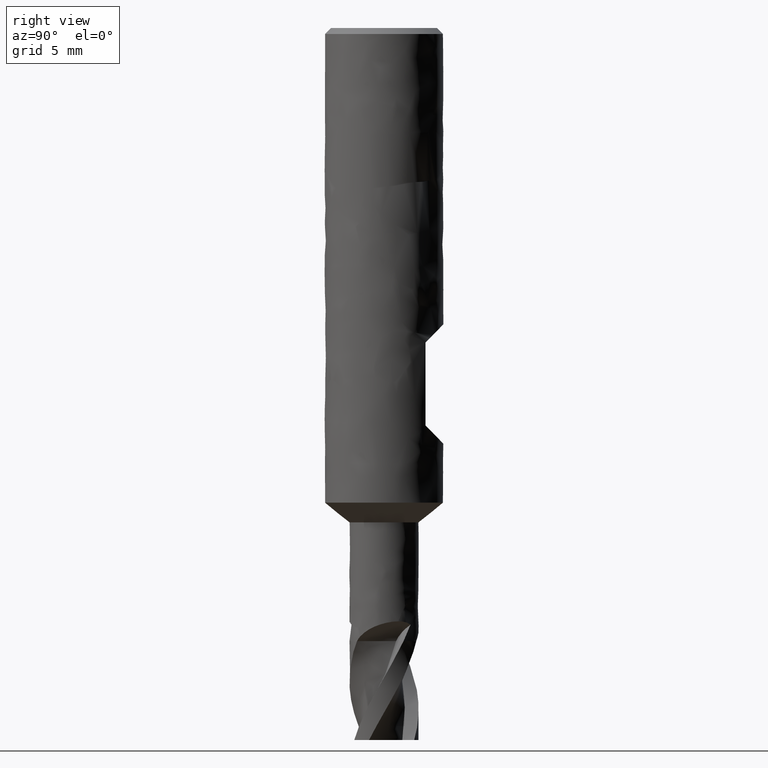
[diagram: clean part render]
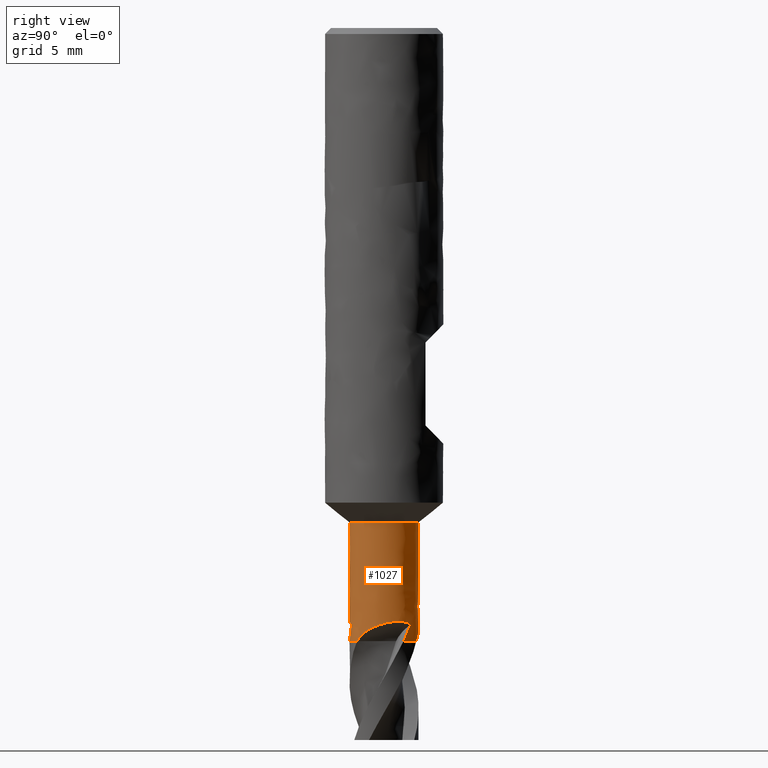
[diagram: same view with one face highlighted and labeled with its STEP entity id]
A machine part, right view. The second image highlights one B-rep face of the part: STEP entity #1027.
In plain terms, the highlighted face is a freeform B-spline surface patch.
Its self-contained STEP definition (entity closure, byte-faithful):
#75 = VERTEX_POINT('', #76);
#76 = CARTESIAN_POINT('', (-1.75, 1.63796509385958E-15, -25.));
#90 = EDGE_CURVE('', #75, #75, #91, .T.);
#91 = CIRCLE('', #92, 1.75);
#92 = AXIS2_PLACEMENT_3D('', #93, #94, #95);
#93 = CARTESIAN_POINT('', (9.37349864163661E-32, 1.53080849893419E-15, -25.));
#94 = DIRECTION('', (3.74939945665464E-33, 6.12323399573677E-17, -1.));
#95 = DIRECTION('', (-1., 6.12323399573677E-17, 0.));
#420 = VERTEX_POINT('', #421);
#421 = CARTESIAN_POINT('', (1.09454893589704, -1.3654532679395, -31.));
#430 = VERTEX_POINT('', #431);
#431 = CARTESIAN_POINT('', (1.12310975290565, 1.34205979111524, -30.1687900852077));
#439 = EDGE_CURVE('', #430, #440, #442, .T.);
#440 = VERTEX_POINT('', #441);
#441 = CARTESIAN_POINT('', (1.58970920644162, 0.731658826882284, -30.));
#442 = B_SPLINE_CURVE_WITH_KNOTS('', 3, (#443, #444, #445, #446, #447, #448, #449, #450, #451, #452, #453, #454, #455, #456, #457, #458, #459, #460, #461, #462, #463, #464), .UNSPECIFIED., .F., .U., (4, 3, 3, 3, 3, 3, 3, 4), (0., 0.134933867067805, 0.269158517771514, 0.402628276519871, 0.535374217791112, 0.623260150649925, 0.710971715880444, 0.800275086202417), .UNSPECIFIED.);
#443 = CARTESIAN_POINT('', (1.12310975290565, 1.34205979111524, -30.1687900852077));
#444 = CARTESIAN_POINT('', (1.15350957805734, 1.31661953849719, -30.1475377753224));
#445 = CARTESIAN_POINT('', (1.18409784417837, 1.28924757260887, -30.1286860803321));
#446 = CARTESIAN_POINT('', (1.21419775831601, 1.2602475168396, -30.1120725788267));
#447 = CARTESIAN_POINT('', (1.24413946642186, 1.23139988621428, -30.0955463983726));
#448 = CARTESIAN_POINT('', (1.27371618891919, 1.2008308312672, -30.0811672903462));
#449 = CARTESIAN_POINT('', (1.30242550976801, 1.16884036185681, -30.0687499202262));
#450 = CARTESIAN_POINT('', (1.33097336671851, 1.13702980983029, -30.0564023865541));
#451 = CARTESIAN_POINT('', (1.35875928061214, 1.10371027019488, -30.0459524655558));
#452 = CARTESIAN_POINT('', (1.38541227641415, 1.06917389809187, -30.0372226453273));
#453 = CARTESIAN_POINT('', (1.41192073082822, 1.03482481957475, -30.0285401676317));
#454 = CARTESIAN_POINT('', (1.43738609503882, 0.999174168328024, -30.0215336505313));
#455 = CARTESIAN_POINT('', (1.46153494312049, 0.962504862345016, -30.0160438504999));
#456 = CARTESIAN_POINT('', (1.47752295767519, 0.938227538814522, -30.0124092670817));
#457 = CARTESIAN_POINT('', (1.4929590429604, 0.913469185464861, -30.0094340959969));
#458 = CARTESIAN_POINT('', (1.50778128426889, 0.888310530618908, -30.0070764503992));
#459 = CARTESIAN_POINT('', (1.52257411792387, 0.863201791098808, -30.0047234824224));
#460 = CARTESIAN_POINT('', (1.53677143108068, 0.837667608231328, -30.0029830723735));
#461 = CARTESIAN_POINT('', (1.55032313577712, 0.811787025440909, -30.0018169161316));
#462 = CARTESIAN_POINT('', (1.56412077922151, 0.785436757229333, -30.0006295962787));
#463 = CARTESIAN_POINT('', (1.57726357777224, 0.758700023883859, -30.0000363265924));
#464 = CARTESIAN_POINT('', (1.58970920644161, 0.731658826882309, -30.));
#466 = EDGE_CURVE('', #440, #467, #469, .T.);
#467 = VERTEX_POINT('', #468);
#468 = CARTESIAN_POINT('', (1.59213923073005, 0.726355746153585, -30.));
#469 = CIRCLE('', #470, 1.75);
#470 = AXIS2_PLACEMENT_3D('', #471, #472, #473);
#471 = CARTESIAN_POINT('', (1.12481983699639E-31, 1.83697019872103E-15, -30.));
#472 = DIRECTION('', (3.74939945665464E-33, 6.12323399573677E-17, -1.));
#473 = DIRECTION('', (-1., 6.12323399573677E-17, 0.));
#475 = EDGE_CURVE('', #467, #420, #476, .T.);
#476 = B_SPLINE_CURVE_WITH_KNOTS('', 3, (#477, #478, #479, #480, #481, #482, #483, #484, #485, #486, #487, #488, #489, #490, #491, #492, #493, #494, #495, #496, #497, #498, #499, #500, #501, #502, #503, #504, #505, #506, #507, #508, #509, #510, #511, #512, #513, #514, #515, #516, #517, #518, #519, #520, #521, #522, #523, #524, #525, #526, #527, #528, #529, #530, #531, #532, #533, #534, #535, #536, #537, #538, #539, #540, #541, #542, #543, #544, #545, #546, #547, #548, #549), .UNSPECIFIED., .F., .U., (4, 3, 3, 3, 3, 3, 3, 3, 3, 3, 3, 3, 3, 3, 3, 3, 3, 3, 3, 3, 3, 3, 3, 3, 4), (0., 0.130964808055671, 0.261490179439477, 0.391637227996996, 0.521460389867361, 0.651008157853764, 0.737668280469899, 0.754929170890252, 0.772211244727852, 0.903183176795605, 1.03393581717296, 1.16450638406097, 1.29493040324303, 1.42524245393478, 1.55547691355099, 1.68566867903995, 1.81585382169028, 1.94607009157905, 2.07635711745396, 2.1634908629965, 2.25068301873347, 2.33794668785515, 2.42529256869572, 2.51272810980243, 2.58669447304961), .UNSPECIFIED.);
#477 = CARTESIAN_POINT('', (1.5921392307301, 0.726355746153471, -30.));
#478 = CARTESIAN_POINT('', (1.61025865363282, 0.686638783502062, -30.000053199654));
#479 = CARTESIAN_POINT('', (1.62690551361667, 0.646203338165068, -30.0012993114132));
#480 = CARTESIAN_POINT('', (1.64198356887936, 0.605301544298543, -30.0036336093334));
#481 = CARTESIAN_POINT('', (1.65701103153995, 0.564536991485069, -30.0059600747974));
#482 = CARTESIAN_POINT('', (1.67051090181857, 0.523227388255826, -30.0093721490448));
#483 = CARTESIAN_POINT('', (1.68242322325043, 0.48161405489005, -30.013778159252));
#484 = CARTESIAN_POINT('', (1.69430101727153, 0.440121336188865, -30.0181713988062));
#485 = CARTESIAN_POINT('', (1.7046232626123, 0.398248415998896, -30.0235611496698));
#486 = CARTESIAN_POINT('', (1.71336028176568, 0.356225413001157, -30.0298667000161));
#487 = CARTESIAN_POINT('', (1.7220755577891, 0.314306989334077, -30.0361565582369));
#488 = CARTESIAN_POINT('', (1.72922932202258, 0.272164667434447, -30.0433688912526));
#489 = CARTESIAN_POINT('', (1.73481762049925, 0.230017007208831, -30.051432280923));
#490 = CARTESIAN_POINT('', (1.74039406451791, 0.187958754818321, -30.0594785657242));
#491 = CARTESIAN_POINT('', (1.74442133670059, 0.145824381785312, -30.0683858768969));
#492 = CARTESIAN_POINT('', (1.74691765273615, 0.10382058831866, -30.0780908118169));
#493 = CARTESIAN_POINT('', (1.74858754683847, 0.0757224284758365, -30.084582863847));
#494 = CARTESIAN_POINT('', (1.74957463083384, 0.0476572032910559, -30.0914376614603));
#495 = CARTESIAN_POINT('', (1.74988929343463, 0.0196840220275631, -30.0986379385296));
#496 = CARTESIAN_POINT('', (1.74995196766711, 0.0141123472834989, -30.1000720836673));
#497 = CARTESIAN_POINT('', (1.74998799150703, 0.00854385011834537, -30.1015200541452));
#498 = CARTESIAN_POINT('', (1.74999746446609, 0.00297898678622238, -30.1029817196839));
#499 = CARTESIAN_POINT('', (1.75000694905083, -0.00259270602103308, -30.1044451790508));
#500 = CARTESIAN_POINT('', (1.74998981781149, -0.00816090877838369, -30.1059224072248));
#501 = CARTESIAN_POINT('', (1.74994617625409, -0.0137251671650205, -30.1074132754402));
#502 = CARTESIAN_POINT('', (1.74961543937925, -0.0558938141844806, -30.1187117973915));
#503 = CARTESIAN_POINT('', (1.74775925988196, -0.0978716042362255, -30.1308036579312));
#504 = CARTESIAN_POINT('', (1.74443366323892, -0.139467539444975, -30.1436364034557));
#505 = CARTESIAN_POINT('', (1.74111363477906, -0.180993828869308, -30.1564476625867));
#506 = CARTESIAN_POINT('', (1.73632433939373, -0.222201370422222, -30.1700164026091));
#507 = CARTESIAN_POINT('', (1.73013787538573, -0.262912403959467, -30.1842965662727));
#508 = CARTESIAN_POINT('', (1.72396002604957, -0.303566747246254, -30.1985568447605));
#509 = CARTESIAN_POINT('', (1.71638029195208, -0.343783565406532, -30.2135467595052));
#510 = CARTESIAN_POINT('', (1.70748521905862, -0.383398261206726, -30.2292263815647));
#511 = CARTESIAN_POINT('', (1.6986001296749, -0.422968494897811, -30.2448884053806));
#512 = CARTESIAN_POINT('', (1.68839077778368, -0.461991382836638, -30.2612597101062));
#513 = CARTESIAN_POINT('', (1.67695694227307, -0.500315314339019, -30.2783064364034));
#514 = CARTESIAN_POINT('', (1.66553292266377, -0.538606344901989, -30.2953385281553));
#515 = CARTESIAN_POINT('', (1.6528718925956, -0.57624896372813, -30.3130667912151));
#516 = CARTESIAN_POINT('', (1.63908607681186, -0.613104259324219, -30.3314635807382));
#517 = CARTESIAN_POINT('', (1.6253084694499, -0.649937610349491, -30.3498494163497));
#518 = CARTESIAN_POINT('', (1.61039049359373, -0.686029979738805, -30.3689255886421));
#519 = CARTESIAN_POINT('', (1.59445652308353, -0.72125473724364, -30.3886710237097));
#520 = CARTESIAN_POINT('', (1.5785277761291, -0.756467947188146, -30.4084099857277));
#521 = CARTESIAN_POINT('', (1.56156488047212, -0.790855768183529, -30.4288410406681));
#522 = CARTESIAN_POINT('', (1.54370467586698, -0.824303265616739, -30.4499502747281));
#523 = CARTESIAN_POINT('', (1.52584537980818, -0.857749061579986, -30.471058434964));
#524 = CARTESIAN_POINT('', (1.50706846165383, -0.890292785004292, -30.4928686756647));
#525 = CARTESIAN_POINT('', (1.48752437174483, -0.921830376731607, -30.5153750971827));
#526 = CARTESIAN_POINT('', (1.46797560884832, -0.95337550909004, -30.5378868999811));
#527 = CARTESIAN_POINT('', (1.44763752269755, -0.983949013281015, -30.5611200332662));
#528 = CARTESIAN_POINT('', (1.42667650734552, -1.01345653255992, -30.5850777650651));
#529 = CARTESIAN_POINT('', (1.40570410234678, -1.04298008542377, -30.609048514845));
#530 = CARTESIAN_POINT('', (1.38408497194306, -1.07146874098097, -30.633770628742));
#531 = CARTESIAN_POINT('', (1.36200558055818, -1.09883611085929, -30.6592580046792));
#532 = CARTESIAN_POINT('', (1.34723925937045, -1.11713894206701, -30.6763035279349));
#533 = CARTESIAN_POINT('', (1.33225813596383, -1.13495215299162, -30.6937010272373));
#534 = CARTESIAN_POINT('', (1.31712674750648, -1.15224872792469, -30.7114621452661));
#535 = CARTESIAN_POINT('', (1.30198521570758, -1.16955689763426, -30.7292351694784));
#536 = CARTESIAN_POINT('', (1.28668553562683, -1.18635637811812, -30.7473813810033));
#537 = CARTESIAN_POINT('', (1.2713017828733, -1.20261871632832, -30.7659177134538));
#538 = CARTESIAN_POINT('', (1.25590541265183, -1.2188943926059, -30.7844692490596));
#539 = CARTESIAN_POINT('', (1.24041633298451, -1.23464084809416, -30.803421352203));
#540 = CARTESIAN_POINT('', (1.22492155886833, -1.24982685785655, -30.822796656335));
#541 = CARTESIAN_POINT('', (1.20941218701604, -1.26502717446597, -30.8421902140778));
#542 = CARTESIAN_POINT('', (1.19388752017279, -1.27967513373564, -30.862019088679));
#543 = CARTESIAN_POINT('', (1.17845347445012, -1.2937339017574, -30.882312969445));
#544 = CARTESIAN_POINT('', (1.1630035857291, -1.30780710105938, -30.9026276818143));
#545 = CARTESIAN_POINT('', (1.14763318562853, -1.32129985352633, -30.9234221942568));
#546 = CARTESIAN_POINT('', (1.13247673900595, -1.3341650706005, -30.9447343939121));
#547 = CARTESIAN_POINT('', (1.1196550966597, -1.34504844030711, -30.9627635143515));
#548 = CARTESIAN_POINT('', (1.10697570766172, -1.3554919531651, -30.9811787624233));
#549 = CARTESIAN_POINT('', (1.09454893589704, -1.3654532679395, -31.));
#566 = VERTEX_POINT('', #567);
#567 = CARTESIAN_POINT('', (1.44195658829242, 0.991595279073117, -31.));
#573 = EDGE_CURVE('', #430, #566, #574, .T.);
#574 = B_SPLINE_CURVE_WITH_KNOTS('', 3, (#575, #576, #577, #578, #579, #580, #581, #582, #583, #584, #585, #586, #587, #588, #589, #590, #591, #592, #593, #594, #595, #596, #597, #598, #599, #600, #601, #602, #603, #604, #605), .UNSPECIFIED., .F., .U., (4, 3, 3, 3, 3, 3, 3, 3, 3, 3, 4), (0., 0.13135541403032, 0.21892987384041, 0.306501893456543, 0.394071976985244, 0.481640503914773, 0.569207659814804, 0.656780102102621, 0.744378989534618, 0.8758766846612, 0.957480981001484), .UNSPECIFIED.);
#575 = CARTESIAN_POINT('', (1.12310975290565, 1.34205979111524, -30.1687900852077));
#576 = CARTESIAN_POINT('', (1.13978178039852, 1.32810771774122, -30.2067969458832));
#577 = CARTESIAN_POINT('', (1.15620895366763, 1.31383200569952, -30.2447945758662));
#578 = CARTESIAN_POINT('', (1.1723673943165, 1.29925158947124, -30.2827873984643));
#579 = CARTESIAN_POINT('', (1.1831402027435, 1.28953084758616, -30.3081171569691));
#580 = CARTESIAN_POINT('', (1.19379413304273, 1.2796742355952, -30.3334459750425));
#581 = CARTESIAN_POINT('', (1.20432268877, 1.26968770227714, -30.3587750404951));
#582 = CARTESIAN_POINT('', (1.21485095112728, 1.25970144722603, -30.384103400173));
#583 = CARTESIAN_POINT('', (1.22525425231102, 1.24958489368836, -30.4094329719988));
#584 = CARTESIAN_POINT('', (1.23552650714484, 1.23934428232936, -30.4347648898458));
#585 = CARTESIAN_POINT('', (1.24579853487435, 1.22910389737508, -30.4600962476417));
#586 = CARTESIAN_POINT('', (1.25593991969074, 1.21873906349365, -30.4854309137999));
#587 = CARTESIAN_POINT('', (1.26594491756421, 1.20825637415796, -30.510770033108));
#588 = CARTESIAN_POINT('', (1.27594973759418, 1.19777387115697, -30.5361087020015));
#589 = CARTESIAN_POINT('', (1.28581856327391, 1.18717310860869, -30.5614527833369));
#590 = CARTESIAN_POINT('', (1.295545904099, 1.17646113848793, -30.586803522397));
#591 = CARTESIAN_POINT('', (1.30527309262654, 1.1657493360807, -30.6121538645496));
#592 = CARTESIAN_POINT('', (1.31485917724947, 1.15492591047532, -30.6375118204367));
#593 = CARTESIAN_POINT('', (1.32429882390935, 1.14399852490828, -30.6628788476634));
#594 = CARTESIAN_POINT('', (1.33373904043624, 1.13307047966013, -30.6882474062855));
#595 = CARTESIAN_POINT('', (1.34303164126148, 1.12204014036103, -30.713627453439));
#596 = CARTESIAN_POINT('', (1.35218826549108, 1.11089463706881, -30.7390053496612));
#597 = CARTESIAN_POINT('', (1.36134765483994, 1.0997457680552, -30.7643909095057));
#598 = CARTESIAN_POINT('', (1.37037168721583, 1.08848076762558, -30.7897749465844));
#599 = CARTESIAN_POINT('', (1.37926834126228, 1.07708813139483, -30.8151457118199));
#600 = CARTESIAN_POINT('', (1.39262341386358, 1.05998625430852, -30.8532306378947));
#601 = CARTESIAN_POINT('', (1.40569411384344, 1.04259332869271, -30.8912868979078));
#602 = CARTESIAN_POINT('', (1.41848218148469, 1.02489428762699, -30.9292935161411));
#603 = CARTESIAN_POINT('', (1.42641814766578, 1.01391068984853, -30.9528795062547));
#604 = CARTESIAN_POINT('', (1.43424500689781, 1.00280929534849, -30.9764480306473));
#605 = CARTESIAN_POINT('', (1.44195658829242, 0.991595279073117, -31.));
#623 = VERTEX_POINT('', #624);
#624 = CARTESIAN_POINT('', (0.63524274976756, 1.63063381814182, -31.));
#633 = VERTEX_POINT('', #634);
#634 = CARTESIAN_POINT('', (-1.72381274895626, 0.301611681696743, -30.1687900852077));
#642 = EDGE_CURVE('', #633, #643, #645, .T.);
#643 = VERTEX_POINT('', #644);
#644 = CARTESIAN_POINT('', (-1.42848973420399, 1.0108991439673, -30.));
#645 = B_SPLINE_CURVE_WITH_KNOTS('', 3, (#646, #647, #648, #649, #650, #651, #652, #653, #654, #655, #656, #657, #658, #659, #660, #661, #662, #663, #664, #665, #666, #667, #668, #669, #670), .UNSPECIFIED., .F., .U., (4, 3, 3, 3, 3, 3, 3, 3, 4), (0., 0.0893186072561968, 0.17846703093453, 0.267422040636935, 0.356174944917682, 0.489776461871031, 0.622713169999812, 0.710711651471404, 0.800376811156798), .UNSPECIFIED.);
#646 = CARTESIAN_POINT('', (-1.72381274895626, 0.301611681696743, -30.1687900852077));
#647 = CARTESIAN_POINT('', (-1.71929035539064, 0.327458690142701, -30.1547222550833));
#648 = CARTESIAN_POINT('', (-1.71408118677475, 0.353791054781882, -30.1417106283896));
#649 = CARTESIAN_POINT('', (-1.7081585639687, 0.380387066473598, -30.1297106936078));
#650 = CARTESIAN_POINT('', (-1.70224722585652, 0.406932403344404, -30.1177336229513));
#651 = CARTESIAN_POINT('', (-1.69561479937899, 0.433788355866204, -30.1067422217041));
#652 = CARTESIAN_POINT('', (-1.68825252436848, 0.460763946032515, -30.0966842153799));
#653 = CARTESIAN_POINT('', (-1.68090622234799, 0.487681010697962, -30.0866480306304));
#654 = CARTESIAN_POINT('', (-1.67282173930296, 0.514760476249579, -30.0775247679905));
#655 = CARTESIAN_POINT('', (-1.6640047548507, 0.541837776307859, -30.0692602574406));
#656 = CARTESIAN_POINT('', (-1.6552078025514, 0.568853556850106, -30.0610145238253));
#657 = CARTESIAN_POINT('', (-1.64566919043777, 0.595906380160153, -30.053611527632));
#658 = CARTESIAN_POINT('', (-1.63540608500445, 0.622853864987932, -30.0469984633468));
#659 = CARTESIAN_POINT('', (-1.61995682770234, 0.663418451355498, -30.0370436857836));
#660 = CARTESIAN_POINT('', (-1.6028249481578, 0.703840889752022, -30.0288546338319));
#661 = CARTESIAN_POINT('', (-1.58410757436215, 0.743709078100078, -30.0222629503799));
#662 = CARTESIAN_POINT('', (-1.56548333929394, 0.783378880052247, -30.0157040675236));
#663 = CARTESIAN_POINT('', (-1.54524037611329, 0.822607402229016, -30.010708742391));
#664 = CARTESIAN_POINT('', (-1.52350854511143, 0.861058484060428, -30.0071287856279));
#665 = CARTESIAN_POINT('', (-1.50912299160497, 0.886511474883898, -30.0047590055776));
#666 = CARTESIAN_POINT('', (-1.49406664709769, 0.911659963368187, -30.0030061048706));
#667 = CARTESIAN_POINT('', (-1.47838332408295, 0.936420176562552, -30.0018313832785));
#668 = CARTESIAN_POINT('', (-1.46240296125171, 0.961649344529887, -30.0006344126333));
#669 = CARTESIAN_POINT('', (-1.44575494671383, 0.986501874490575, -30.0000364737602));
#670 = CARTESIAN_POINT('', (-1.42848973420397, 1.01089914396733, -30.));
#672 = EDGE_CURVE('', #643, #673, #675, .T.);
#673 = VERTEX_POINT('', #674);
#674 = CARTESIAN_POINT('', (-1.42511214371883, 1.01565514709725, -30.));
#675 = CIRCLE('', #676, 1.75);
#676 = AXIS2_PLACEMENT_3D('', #677, #678, #679);
#677 = CARTESIAN_POINT('', (1.12481983699639E-31, 1.83697019872103E-15, -30.));
#678 = DIRECTION('', (3.74939945665464E-33, 6.12323399573677E-17, -1.));
#679 = DIRECTION('', (-1., 6.12323399573677E-17, 0.));
#681 = EDGE_CURVE('', #673, #623, #682, .T.);
#682 = B_SPLINE_CURVE_WITH_KNOTS('', 3, (#683, #684, #685, #686, #687, #688, #689, #690, #691, #692, #693, #694, #695, #696, #697, #698, #699, #700, #701, #702, #703, #704, #705, #706, #707, #708, #709, #710, #711, #712, #713, #714, #715, #716, #717, #718, #719, #720, #721, #722, #723, #724, #725, #726, #727, #728, #729, #730, #731, #732, #733, #734, #735, #736, #737, #738, #739, #740, #741, #742, #743, #744, #745, #746, #747, #748, #749, #750, #751, #752, #753, #754, #755), .UNSPECIFIED., .F., .U., (4, 3, 3, 3, 3, 3, 3, 3, 3, 3, 3, 3, 3, 3, 3, 3, 3, 3, 3, 3, 3, 3, 3, 3, 4), (0., 0.131612423049789, 0.26278191635428, 0.393567586448397, 0.524022740655618, 0.654195305096548, 0.784128560044502, 0.913861988742381, 1.04343215064373, 1.17287354654725, 1.30221946941014, 1.43150284442033, 1.56075706100388, 1.69001678893366, 1.74798599862827, 1.76526172340886, 1.89591472449591, 2.02658426290923, 2.11386207483259, 2.20117358024295, 2.28853775329607, 2.37596573100045, 2.4634662100009, 2.55104344228814, 2.58669529336608), .UNSPECIFIED.);
#683 = CARTESIAN_POINT('', (-1.4251121437188, 1.01565514709728, -30.));
#684 = CARTESIAN_POINT('', (-1.39965067026456, 1.05138130387433, -30.0000534627238));
#685 = CARTESIAN_POINT('', (-1.37281706817068, 1.08618248518668, -30.0013116660589));
#686 = CARTESIAN_POINT('', (-1.34478414095466, 1.11984624580201, -30.0036683543532));
#687 = CARTESIAN_POINT('', (-1.31684555602808, 1.15339671406568, -30.0060171114255));
#688 = CARTESIAN_POINT('', (-1.28765936079014, 1.18588587324798, -30.0094617762596));
#689 = CARTESIAN_POINT('', (-1.25740729532234, 1.21713881446208, -30.0139093945655));
#690 = CARTESIAN_POINT('', (-1.22724375230435, 1.24830030450161, -30.0183439984189));
#691 = CARTESIAN_POINT('', (-1.19596338196542, 1.27829246746008, -30.0237841803716));
#692 = CARTESIAN_POINT('', (-1.16375343262141, 1.30697281840974, -30.0301481518423));
#693 = CARTESIAN_POINT('', (-1.13162488286778, 1.33558068961736, -30.0364960405595));
#694 = CARTESIAN_POINT('', (-1.09851395378168, 1.36293500851037, -30.0437744891025));
#695 = CARTESIAN_POINT('', (-1.06461074938495, 1.38892186687878, -30.0519111726556));
#696 = CARTESIAN_POINT('', (-1.03078098554076, 1.41485243295058, -30.0600302306614));
#697 = CARTESIAN_POINT('', (-0.996105065856232, 1.4394657304618, -30.0690176280836));
#698 = CARTESIAN_POINT('', (-0.960773864517217, 1.46267343630103, -30.078809200127));
#699 = CARTESIAN_POINT('', (-0.925507616126737, 1.48583847704918, -30.0885827713255));
#700 = CARTESIAN_POINT('', (-0.889531810122794, 1.50764059824484, -30.0991733248321));
#701 = CARTESIAN_POINT('', (-0.853036441544427, 1.52801466923496, -30.1105238924828));
#702 = CARTESIAN_POINT('', (-0.816597199726302, 1.54835740664381, -30.1218570039298));
#703 = CARTESIAN_POINT('', (-0.779584327262613, 1.56730778170426, -30.1339651466498));
#704 = CARTESIAN_POINT('', (-0.742185645231607, 1.5848219041937, -30.1467978712398));
#705 = CARTESIAN_POINT('', (-0.70483402865683, 1.60231398552766, -30.1596144461153));
#706 = CARTESIAN_POINT('', (-0.667043265741487, 1.61839904099604, -30.1731724424608));
#707 = CARTESIAN_POINT('', (-0.628998014238909, 1.63305281546052, -30.1874274939771));
#708 = CARTESIAN_POINT('', (-0.590990571863838, 1.6476920270977, -30.2016683789144));
#709 = CARTESIAN_POINT('', (-0.552676482506925, 1.66092323223007, -30.2166246805953));
#710 = CARTESIAN_POINT('', (-0.514236531964431, 1.67274050264624, -30.2322578926533));
#711 = CARTESIAN_POINT('', (-0.475824933858453, 1.68454905691152, -30.2478795740084));
#712 = CARTESIAN_POINT('', (-0.437236869207923, 1.69496149124869, -30.2641978222606));
#713 = CARTESIAN_POINT('', (-0.398648820697201, 1.70398917771115, -30.2811799640725));
#714 = CARTESIAN_POINT('', (-0.360079432222456, 1.71301249865215, -30.2981538938242));
#715 = CARTESIAN_POINT('', (-0.321461312751342, 1.72066390035485, -30.315812508344));
#716 = CARTESIAN_POINT('', (-0.282966508138483, 1.7269713243919, -30.3341291335564));
#717 = CARTESIAN_POINT('', (-0.244480385600455, 1.73327732585965, -30.3524416276578));
#718 = CARTESIAN_POINT('', (-0.206070925438526, 1.73824764411488, -30.3714339644382));
#719 = CARTESIAN_POINT('', (-0.167905950436625, 1.74192640252384, -30.3910858382015));
#720 = CARTESIAN_POINT('', (-0.129739348096007, 1.74560531779354, -30.4107385499126));
#721 = CARTESIAN_POINT('', (-0.0917728375175003, 1.74799686072889, -30.4310736509553));
#722 = CARTESIAN_POINT('', (-0.0541706738289452, 1.7491613813764, -30.4520777983312));
#723 = CARTESIAN_POINT('', (-0.037307202531705, 1.74968363484768, -30.4614975444748));
#724 = CARTESIAN_POINT('', (-0.0205107592953922, 1.74995962638727, -30.471055340715));
#725 = CARTESIAN_POINT('', (-0.00379597787908691, 1.74999588301, -30.4807504837234));
#726 = CARTESIAN_POINT('', (0.00118528657211123, 1.75000668804666, -30.4836397869105));
#727 = CARTESIAN_POINT('', (0.00615951442790762, 1.74999620871994, -30.4865414138353));
#728 = CARTESIAN_POINT('', (0.0111263197302565, 1.7499646296452, -30.4894553515558));
#729 = CARTESIAN_POINT('', (0.0486893179146273, 1.74972580314508, -30.5114929050014));
#730 = CARTESIAN_POINT('', (0.0858512158171688, 1.74827781016728, -30.5342481364096));
#731 = CARTESIAN_POINT('', (0.122445539854578, 1.74571105563599, -30.5577206064965));
#732 = CARTESIAN_POINT('', (0.159044495796886, 1.74314397621927, -30.5811960475975));
#733 = CARTESIAN_POINT('', (0.19511621287774, 1.73945487425564, -30.6054146353187));
#734 = CARTESIAN_POINT('', (0.230492791352385, 1.73475447056193, -30.6303860931902));
#735 = CARTESIAN_POINT('', (0.254121790123592, 1.73161494045778, -30.6470652230779));
#736 = CARTESIAN_POINT('', (0.2774551976903, 1.72802286496169, -30.6640903495408));
#737 = CARTESIAN_POINT('', (0.30044133485596, 1.7240171125344, -30.6814676638243));
#738 = CARTESIAN_POINT('', (0.323436345790296, 1.72000981369153, -30.6988516865976));
#739 = CARTESIAN_POINT('', (0.346094973887169, 1.71558646550265, -30.7165971973965));
#740 = CARTESIAN_POINT('', (0.368358666824084, 1.71079276727942, -30.7347185012631));
#741 = CARTESIAN_POINT('', (0.390635789562956, 1.70599617742371, -30.7528507361788));
#742 = CARTESIAN_POINT('', (0.412529167890837, 1.7008261747317, -30.7713684789776));
#743 = CARTESIAN_POINT('', (0.433973474584046, 1.69533684657576, -30.790291068696));
#744 = CARTESIAN_POINT('', (0.455433442691564, 1.68984350940039, -30.8092274781438));
#745 = CARTESIAN_POINT('', (0.476455908930278, 1.68402709834368, -30.8285797471618));
#746 = CARTESIAN_POINT('', (0.496964593875417, 1.67795297682451, -30.8483735208512));
#747 = CARTESIAN_POINT('', (0.517490286033563, 1.67187381822575, -30.8681837089));
#748 = CARTESIAN_POINT('', (0.537514685789772, 1.66553234649082, -30.8884484372108));
#749 = CARTESIAN_POINT('', (0.556943820764242, 1.65900981929359, -30.909201006003));
#750 = CARTESIAN_POINT('', (0.576389998502199, 1.65248157069452, -30.9299717784425));
#751 = CARTESIAN_POINT('', (0.595255219542065, 1.64576646892084, -30.9512467628752));
#752 = CARTESIAN_POINT('', (0.613416797093276, 1.63896913730669, -30.973067629721));
#753 = CARTESIAN_POINT('', (0.620810201078373, 1.63620200881786, -30.9819506952719));
#754 = CARTESIAN_POINT('', (0.628089790637999, 1.63342038209988, -30.9909281472046));
#755 = CARTESIAN_POINT('', (0.63524274976756, 1.63063381814182, -31.));
#772 = VERTEX_POINT('', #773);
#773 = CARTESIAN_POINT('', (-1.57972499609625, 0.752973397079018, -31.));
#779 = EDGE_CURVE('', #633, #772, #780, .T.);
#780 = B_SPLINE_CURVE_WITH_KNOTS('', 3, (#781, #782, #783, #784, #785, #786, #787, #788, #789, #790, #791, #792, #793, #794, #795, #796, #797, #798, #799, #800, #801, #802, #803, #804, #805, #806, #807, #808, #809, #810, #811), .UNSPECIFIED., .F., .U., (4, 3, 3, 3, 3, 3, 3, 3, 3, 3, 4), (0., 0.131437881705884, 0.21904880136749, 0.306657138133151, 0.394263353092062, 0.481867783602156, 0.569470571810435, 0.657078396735014, 0.744712478764379, 0.876289632918015, 0.957480969290657), .UNSPECIFIED.);
#781 = CARTESIAN_POINT('', (-1.72381274895626, 0.301611681696743, -30.1687900852077));
#782 = CARTESIAN_POINT('', (-1.7200635603832, 0.32303956215588, -30.206820807385));
#783 = CARTESIAN_POINT('', (-1.71591115920269, 0.344417149306712, -30.24484228836));
#784 = CARTESIAN_POINT('', (-1.71136001311442, 0.36571424023822, -30.282858959603));
#785 = CARTESIAN_POINT('', (-1.70832641207694, 0.379909978167118, -30.3081992609442));
#786 = CARTESIAN_POINT('', (-1.70511555891669, 0.394070662892567, -30.3335386233472));
#787 = CARTESIAN_POINT('', (-1.70172936011069, 0.408187683470826, -30.3588782360179));
#788 = CARTESIAN_POINT('', (-1.69834326113469, 0.42230428785901, -30.3842171016404));
#789 = CARTESIAN_POINT('', (-1.69478169697574, 0.436377775517531, -30.4095571834943));
#790 = CARTESIAN_POINT('', (-1.6910470332863, 0.450399746018572, -30.4348996168257));
#791 = CARTESIAN_POINT('', (-1.68731246004756, 0.464421376918236, -30.4602414363828));
#792 = CARTESIAN_POINT('', (-1.6834046508185, 0.478392036494812, -30.4855865709321));
#793 = CARTESIAN_POINT('', (-1.6793264481948, 0.492303443410095, -30.5109361667834));
#794 = CARTESIAN_POINT('', (-1.67524832863991, 0.506214566964275, -30.5362852462893));
#795 = CARTESIAN_POINT('', (-1.67099966268744, 0.520066980874104, -30.5616397475353));
#796 = CARTESIAN_POINT('', (-1.6665838177526, 0.533852393836687, -30.5870009177056));
#797 = CARTESIAN_POINT('', (-1.66216805560068, 0.547637548367035, -30.6123616124354));
#798 = CARTESIAN_POINT('', (-1.65758494577877, 0.561356240742448, -30.6377299332125));
#799 = CARTESIAN_POINT('', (-1.65283846452247, 0.575000008865224, -30.6631073401935));
#800 = CARTESIAN_POINT('', (-1.64809171036755, 0.588644561435512, -30.6884862062468));
#801 = CARTESIAN_POINT('', (-1.64318242445916, 0.602212383410531, -30.7138765495319));
#802 = CARTESIAN_POINT('', (-1.63810525232865, 0.615720051885017, -30.7392646874617));
#803 = CARTESIAN_POINT('', (-1.63302655850941, 0.629231768768043, -30.7646604345177));
#804 = CARTESIAN_POINT('', (-1.62777945615294, 0.642684337373846, -30.7900546151189));
#805 = CARTESIAN_POINT('', (-1.6223579665512, 0.656090411732912, -30.8154354782514));
#806 = CARTESIAN_POINT('', (-1.61421793522375, 0.676218803240989, -30.8535432744831));
#807 = CARTESIAN_POINT('', (-1.60568313121568, 0.696246415444814, -30.8916222892546));
#808 = CARTESIAN_POINT('', (-1.59674140001483, 0.716182170595385, -30.9296515871453));
#809 = CARTESIAN_POINT('', (-1.59122379241531, 0.728483778824293, -30.953118043286));
#810 = CARTESIAN_POINT('', (-1.58555119483031, 0.740750134201309, -30.9765672157998));
#811 = CARTESIAN_POINT('', (-1.57972499609625, 0.752973397079018, -31.));
#829 = VERTEX_POINT('', #830);
#830 = CARTESIAN_POINT('', (-1.72979168566461, -0.265180550202315, -31.));
#839 = VERTEX_POINT('', #840);
#840 = CARTESIAN_POINT('', (0.600702996050597, -1.64367147281196, -30.1687900852077));
#848 = EDGE_CURVE('', #849, #839, #851, .T.);
#849 = VERTEX_POINT('', #850);
#850 = CARTESIAN_POINT('', (-0.161219472237646, -1.74255797084958, -30.));
#851 = B_SPLINE_CURVE_WITH_KNOTS('', 3, (#852, #853, #854, #855, #856, #857, #858, #859, #860, #861, #862, #863, #864, #865, #866, #867, #868, #869, #870, #871, #872, #873, #874, #875, #876), .UNSPECIFIED., .F., .U., (4, 3, 3, 3, 3, 3, 3, 3, 4), (0., 0.130535557624491, 0.156430882981666, 0.173721917470514, 0.305624379707438, 0.436934105452549, 0.567601640778236, 0.69760195825033, 0.800276581891903), .UNSPECIFIED.);
#852 = CARTESIAN_POINT('', (-0.161219472237523, -1.74255797084959, -30.));
#853 = CARTESIAN_POINT('', (-0.11789268994313, -1.74656651523784, -30.0000530989142));
#854 = CARTESIAN_POINT('', (-0.0743678967978484, -1.74895860077238, -30.0012962317834));
#855 = CARTESIAN_POINT('', (-0.0309377044677529, -1.74972650961293, -30.0038477062153));
#856 = CARTESIAN_POINT('', (-0.0223221289021455, -1.74987884549469, -30.0043538614863));
#857 = CARTESIAN_POINT('', (-0.0137080637717258, -1.74996749225812, -30.0049116337992));
#858 = CARTESIAN_POINT('', (-0.00509793349250026, -1.74999257457685, -30.0055220182338));
#859 = CARTESIAN_POINT('', (0.000651291804269831, -1.75000932274402, -30.0059295890276));
#860 = CARTESIAN_POINT('', (0.00639905439712215, -1.74999773291811, -30.0063606381717));
#861 = CARTESIAN_POINT('', (0.0121446201450579, -1.74995785897876, -30.0068154681083));
#862 = CARTESIAN_POINT('', (0.0559739392980354, -1.74965368569276, -30.0102850805578));
#863 = CARTESIAN_POINT('', (0.0997392351704172, -1.74769687603632, -30.0151436760649));
#864 = CARTESIAN_POINT('', (0.143093977832254, -1.74413993518529, -30.021535421512));
#865 = CARTESIAN_POINT('', (0.18625389518429, -1.74059897833187, -30.0278984440625));
#866 = CARTESIAN_POINT('', (0.229119759665113, -1.73546186416111, -30.0357977634933));
#867 = CARTESIAN_POINT('', (0.271308759869313, -1.72884110224687, -30.0453924844739));
#868 = CARTESIAN_POINT('', (0.313291428276058, -1.72225272018756, -30.0549402809951));
#869 = CARTESIAN_POINT('', (0.354724566316829, -1.7141747765272, -30.0661950938474));
#870 = CARTESIAN_POINT('', (0.395181142201454, -1.70479672244181, -30.079326324269));
#871 = CARTESIAN_POINT('', (0.435431137701302, -1.69546655481194, -30.0923905036717));
#872 = CARTESIAN_POINT('', (0.474844759003293, -1.68481753550152, -30.1073559033399));
#873 = CARTESIAN_POINT('', (0.512940319617643, -1.67313843674412, -30.1243886325076));
#874 = CARTESIAN_POINT('', (0.543028302666859, -1.66391425104437, -30.1378411308621));
#875 = CARTESIAN_POINT('', (0.572372355679302, -1.65402530618594, -30.1526186601503));
#876 = CARTESIAN_POINT('', (0.600702996050597, -1.64367147281196, -30.1687900852077));
#878 = EDGE_CURVE('', #849, #879, #881, .T.);
#879 = VERTEX_POINT('', #880);
#880 = CARTESIAN_POINT('', (-0.167027087011237, -1.74201089325082, -30.));
#881 = CIRCLE('', #882, 1.75);
#882 = AXIS2_PLACEMENT_3D('', #883, #884, #885);
#883 = CARTESIAN_POINT('', (1.12481983699639E-31, 1.83697019872103E-15, -30.));
#884 = DIRECTION('', (3.74939945665464E-33, 6.12323399573677E-17, -1.));
#885 = DIRECTION('', (-1., 6.12323399573677E-17, 0.));
#887 = EDGE_CURVE('', #829, #879, #888, .T.);
#888 = B_SPLINE_CURVE_WITH_KNOTS('', 3, (#889, #890, #891, #892, #893, #894, #895, #896, #897, #898, #899, #900, #901, #902, #903, #904, #905, #906, #907, #908, #909, #910, #911, #912, #913, #914, #915, #916, #917, #918, #919, #920, #921, #922, #923, #924, #925, #926, #927, #928, #929, #930, #931, #932, #933, #934, #935, #936, #937, #938, #939, #940, #941, #942, #943, #944, #945, #946, #947, #948, #949, #950, #951, #952, #953, #954, #955, #956, #957, #958), .UNSPECIFIED., .F., .U., (4, 3, 3, 3, 3, 3, 3, 3, 3, 3, 3, 3, 3, 3, 3, 3, 3, 3, 3, 3, 3, 3, 3, 4), (0.501656907740969, 0.584559685626974, 0.672452337365894, 0.760428333206171, 0.848487804201945, 0.936624517731872, 1.02482842539509, 1.11307949924496, 1.20136576338913, 1.28967967387161, 1.42277469307435, 1.55590404415727, 1.68903240402004, 1.82212574804149, 1.95515100844169, 2.0880755619751, 2.22086664364161, 2.35349074249861, 2.48591301566588, 2.61809675228384, 2.75000292944642, 2.88158992994958, 2.96909612641652, 3.08836631602028), .UNSPECIFIED.);
#889 = CARTESIAN_POINT('', (-1.72979168566461, -0.265180550202315, -31.));
#890 = CARTESIAN_POINT('', (-1.72708674361545, -0.28282508055444, -30.9789048317389));
#891 = CARTESIAN_POINT('', (-1.72401609217601, -0.301044712595276, -30.9583217279175));
#892 = CARTESIAN_POINT('', (-1.72055291646883, -0.319683689966511, -30.9382158277045));
#893 = CARTESIAN_POINT('', (-1.71688129406842, -0.339444537414977, -30.916899764113));
#894 = CARTESIAN_POINT('', (-1.71276528763178, -0.359695068065961, -30.8961008810765));
#895 = CARTESIAN_POINT('', (-1.70817864206019, -0.380296892978876, -30.8757815808271));
#896 = CARTESIAN_POINT('', (-1.70358764720746, -0.400918253547499, -30.8554430128257));
#897 = CARTESIAN_POINT('', (-1.6985220875317, -0.421906376659393, -30.8355711813628));
#898 = CARTESIAN_POINT('', (-1.69296099364925, -0.443151299199435, -30.8161366092068));
#899 = CARTESIAN_POINT('', (-1.68739462317774, -0.464416379774581, -30.7966835967488));
#900 = CARTESIAN_POINT('', (-1.68132854836737, -0.485951785496528, -30.7776572904859));
#901 = CARTESIAN_POINT('', (-1.67474636661612, -0.507665842366904, -30.7590351949161));
#902 = CARTESIAN_POINT('', (-1.66815841121676, -0.529398946010562, -30.7403967647281));
#903 = CARTESIAN_POINT('', (-1.66104992691917, -0.551323036029209, -30.7221532946945));
#904 = CARTESIAN_POINT('', (-1.65340862109426, -0.573358467010461, -30.7042879579508));
#905 = CARTESIAN_POINT('', (-1.64576148965025, -0.595410697479999, -30.6864090009372));
#906 = CARTESIAN_POINT('', (-1.63757696060646, -0.617585598445981, -30.6688992310644));
#907 = CARTESIAN_POINT('', (-1.62884611401328, -0.639812735778652, -30.6517480423109));
#908 = CARTESIAN_POINT('', (-1.62011059868432, -0.662051758858063, -30.6345876821251));
#909 = CARTESIAN_POINT('', (-1.6108236414692, -0.684354837975277, -30.6177785306682));
#910 = CARTESIAN_POINT('', (-1.60097918482127, -0.70665808547662, -30.6013160532879));
#911 = CARTESIAN_POINT('', (-1.59113080267633, -0.728970226443043, -30.5848470114615));
#912 = CARTESIAN_POINT('', (-1.58071957614369, -0.751293704642848, -30.5687167290378));
#913 = CARTESIAN_POINT('', (-1.56974304419196, -0.773567563443085, -30.5529229782319));
#914 = CARTESIAN_POINT('', (-1.55876307500208, -0.79584839717472, -30.5371242817033));
#915 = CARTESIAN_POINT('', (-1.54721193034379, -0.818090814504453, -30.5216544006865));
#916 = CARTESIAN_POINT('', (-1.5350906569964, -0.840236082778298, -30.5065132015032));
#917 = CARTESIAN_POINT('', (-1.51682308057361, -0.873610495597919, -30.4836943931746));
#918 = CARTESIAN_POINT('', (-1.49724167031621, -0.906796158024633, -30.4615998730158));
#919 = CARTESIAN_POINT('', (-1.47636482025037, -0.939599338828578, -30.4402372361602));
#920 = CARTESIAN_POINT('', (-1.45548258499791, -0.972410981217932, -30.4188690888092));
#921 = CARTESIAN_POINT('', (-1.43327921250438, -1.00487930963931, -30.3982076968888));
#922 = CARTESIAN_POINT('', (-1.40979084662675, -1.03681713371618, -30.3782692564214));
#923 = CARTESIAN_POINT('', (-1.38630265563272, -1.06875471999864, -30.3583309644065));
#924 = CARTESIAN_POINT('', (-1.36150022540774, -1.10020155359346, -30.3390908690441));
#925 = CARTESIAN_POINT('', (-1.33543757294722, -1.1309759010522, -30.3205728316912));
#926 = CARTESIAN_POINT('', (-1.30938177556779, -1.16174215414496, -30.3020596650109));
#927 = CARTESIAN_POINT('', (-1.28203256202275, -1.19187614787381, -30.2842442052125));
#928 = CARTESIAN_POINT('', (-1.25346207837132, -1.22120138309987, -30.2671573011676));
#929 = CARTESIAN_POINT('', (-1.22490620989093, -1.2505116170633, -30.2500791378927));
#930 = CARTESIAN_POINT('', (-1.19509155556015, -1.27905356602531, -30.2337056710404));
#931 = CARTESIAN_POINT('', (-1.16410872314557, -1.3066563743756, -30.2180742869926));
#932 = CARTESIAN_POINT('', (-1.13314934630603, -1.33423828600044, -30.202454736695));
#933 = CARTESIAN_POINT('', (-1.10097961327566, -1.36092145919102, -30.1875540291361));
#934 = CARTESIAN_POINT('', (-1.06770896435579, -1.3865415851803, -30.1734158439832));
#935 = CARTESIAN_POINT('', (-1.03447172307585, -1.41213598555338, -30.1592918552291));
#936 = CARTESIAN_POINT('', (-1.0000864218129, -1.43670728264335, -30.1459079259185));
#937 = CARTESIAN_POINT('', (-0.964681716922682, -1.46009903261221, -30.1333139788917));
#938 = CARTESIAN_POINT('', (-0.929321532922103, -1.48346136780351, -30.1207358685659));
#939 = CARTESIAN_POINT('', (-0.892889569387296, -1.5056832005277, -30.1089262390872));
#940 = CARTESIAN_POINT('', (-0.855534081371836, -1.52661764551942, -30.0979413992827));
#941 = CARTESIAN_POINT('', (-0.818235440469373, -1.54752023273538, -30.0869732760697));
#942 = CARTESIAN_POINT('', (-0.779955437234199, -1.56717309310847, -30.0768096130959));
#943 = CARTESIAN_POINT('', (-0.740862307092958, -1.58544096135078, -30.0675134494812));
#944 = CARTESIAN_POINT('', (-0.701839596679023, -1.60367592308765, -30.0582340313485));
#945 = CARTESIAN_POINT('', (-0.661940259239075, -1.62056164879298, -30.0498031937387));
#946 = CARTESIAN_POINT('', (-0.621352908964632, -1.63597694437336, -30.0422912686629));
#947 = CARTESIAN_POINT('', (-0.580850784022179, -1.6513598709108, -30.0347951171298));
#948 = CARTESIAN_POINT('', (-0.539591302082903, -1.66530566395118, -30.0282006417383));
#949 = CARTESIAN_POINT('', (-0.497783914285614, -1.67771009852074, -30.0225862699931));
#950 = CARTESIAN_POINT('', (-0.456077688864975, -1.69008451777129, -30.016985483483));
#951 = CARTESIAN_POINT('', (-0.413748187042593, -1.70094782422835, -30.0123495618697));
#952 = CARTESIAN_POINT('', (-0.371026295281012, -1.71021621095405, -30.0087660898143));
#953 = CARTESIAN_POINT('', (-0.342615964172063, -1.71637974737217, -30.0063830579911));
#954 = CARTESIAN_POINT('', (-0.314001863626859, -1.72184540615536, -30.0044628354828));
#955 = CARTESIAN_POINT('', (-0.285257807328728, -1.72659433086037, -30.0030338927815));
#956 = CARTESIAN_POINT('', (-0.246079906984783, -1.73306707419568, -30.0010862562276));
#957 = CARTESIAN_POINT('', (-0.206602289916462, -1.73821635276617, -30.0000484491438));
#958 = CARTESIAN_POINT('', (-0.16702708701134, -1.74201089325081, -30.));
#975 = VERTEX_POINT('', #976);
#976 = CARTESIAN_POINT('', (0.13776840780383, -1.74456867615213, -31.));
#982 = EDGE_CURVE('', #839, #975, #983, .T.);
#983 = B_SPLINE_CURVE_WITH_KNOTS('', 3, (#984, #985, #986, #987, #988, #989, #990, #991, #992, #993, #994, #995, #996, #997, #998, #999, #1000, #1001, #1002, #1003, #1004, #1005, #1006, #1007, #1008, #1009, #1010, #1011, #1012, #1013, #1014), .UNSPECIFIED., .F., .U., (4, 3, 3, 3, 3, 3, 3, 3, 3, 3, 4), (0., 0.131275683956627, 0.218814420705064, 0.306350618722974, 0.393884825137837, 0.481417462472967, 0.568948761508609, 0.656485362304637, 0.74404836340026, 0.875464773220588, 0.957480992765591), .UNSPECIFIED.);
#984 = CARTESIAN_POINT('', (0.600702996050597, -1.64367147281196, -30.1687900852077));
#985 = CARTESIAN_POINT('', (0.580296526163186, -1.6511293059635, -30.2067738764892));
#986 = CARTESIAN_POINT('', (0.559732396185039, -1.65821372363375, -30.2447484472348));
#987 = CARTESIAN_POINT('', (0.539038891494199, -1.6649135333274, -30.2827182128698));
#988 = CARTESIAN_POINT('', (0.525239814582648, -1.66938117622485, -30.3080376415572));
#989 = CARTESIAN_POINT('', (0.511382550224719, -1.67367807447895, -30.33335612838));
#990 = CARTESIAN_POINT('', (0.497475488138515, -1.67780157906152, -30.3586748597821));
#991 = CARTESIAN_POINT('', (0.483568829374136, -1.68192496405741, -30.38399285691));
#992 = CARTESIAN_POINT('', (0.469611840333598, -1.68587512502191, -30.409312062208));
#993 = CARTESIAN_POINT('', (0.455612957688566, -1.68964991426812, -30.4346336081959));
#994 = CARTESIAN_POINT('', (0.441614393542829, -1.69342461763121, -30.459954578074));
#995 = CARTESIAN_POINT('', (0.427573396101598, -1.69702410317212, -30.4852788498072));
#996 = CARTESIAN_POINT('', (0.413498536571687, -1.7004466943286, -30.5106075666751));
#997 = CARTESIAN_POINT('', (0.399423929338309, -1.703869224134, -30.5359358295174));
#998 = CARTESIAN_POINT('', (0.385314914466009, -1.70711499742031, -30.5612694956186));
#999 = CARTESIAN_POINT('', (0.371180332684695, -1.7101827857361, -30.5866098083705));
#1000 = CARTESIAN_POINT('', (0.3570459670091, -1.71325052714802, -30.6119497336907));
#1001 = CARTESIAN_POINT('', (0.342885484683516, -1.71614040544989, -30.6372972605168));
#1002 = CARTESIAN_POINT('', (0.328708176341227, -1.7188516325752, -30.6626538439084));
#1003 = CARTESIAN_POINT('', (0.314530009281055, -1.72156302391921, -30.6880119631452));
#1004 = CARTESIAN_POINT('', (0.300337093595502, -1.72409556735084, -30.713381581255));
#1005 = CARTESIAN_POINT('', (0.286112532883923, -1.7264529007554, -30.738749102364));
#1006 = CARTESIAN_POINT('', (0.271883682164952, -1.72881094511181, -30.7641242741032));
#1007 = CARTESIAN_POINT('', (0.25762202302875, -1.73099383590165, -30.789497966245));
#1008 = CARTESIAN_POINT('', (0.24331359934047, -1.73300273870989, -30.814858432089));
#1009 = CARTESIAN_POINT('', (0.221839213495147, -1.73601774266628, -30.8529199572868));
#1010 = CARTESIAN_POINT('', (0.200255200535204, -1.73864143354798, -30.8909529318957));
#1011 = CARTESIAN_POINT('', (0.178547529588367, -1.74086782372411, -30.9289363415047));
#1012 = CARTESIAN_POINT('', (0.164999897990299, -1.7422573009266, -30.952641567251));
#1013 = CARTESIAN_POINT('', (0.151404307237299, -1.7434918505851, -30.9763291447169));
#1014 = CARTESIAN_POINT('', (0.13776840780383, -1.74456867615213, -31.));
#1027 = ADVANCED_FACE('', (#1028), #1080, .T.);
#1028 = FACE_OUTER_BOUND('', #1029, .T.);
#1029 = EDGE_LOOP('', (#1030, #1039, #1040, #1041, #1042, #1043, #1050, #1051, #1052, #1053, #1054, #1061, #1062, #1063, #1064, #1065, #1072, #1078, #1079));
#1030 = ORIENTED_EDGE('', *, *, #1031, .F.);
#1031 = EDGE_CURVE('', #829, #1032, #1034, .T.);
#1032 = VERTEX_POINT('', #1033);
#1033 = CARTESIAN_POINT('', (-1.75, 2.00535913360379E-15, -31.));
#1034 = CIRCLE('', #1035, 1.75);
#1035 = AXIS2_PLACEMENT_3D('', #1036, #1037, #1038);
#1036 = CARTESIAN_POINT('', (1.16231383156294E-31, 1.8982025386784E-15, -31.));
#1037 = DIRECTION('', (3.74939945665464E-33, 6.12323399573677E-17, -1.));
#1038 = DIRECTION('', (-1., 6.12323399573677E-17, 0.));
#1039 = ORIENTED_EDGE('', *, *, #887, .T.);
#1040 = ORIENTED_EDGE('', *, *, #878, .F.);
#1041 = ORIENTED_EDGE('', *, *, #848, .T.);
#1042 = ORIENTED_EDGE('', *, *, #982, .T.);
#1043 = ORIENTED_EDGE('', *, *, #1044, .F.);
#1044 = EDGE_CURVE('', #420, #975, #1045, .T.);
#1045 = CIRCLE('', #1046, 1.75);
#1046 = AXIS2_PLACEMENT_3D('', #1047, #1048, #1049);
#1047 = CARTESIAN_POINT('', (1.16231383156294E-31, 1.8982025386784E-15, -31.));
#1048 = DIRECTION('', (3.74939945665464E-33, 6.12323399573677E-17, -1.));
#1049 = DIRECTION('', (-1., 6.12323399573677E-17, 0.));
#1050 = ORIENTED_EDGE('', *, *, #475, .F.);
#1051 = ORIENTED_EDGE('', *, *, #466, .F.);
#1052 = ORIENTED_EDGE('', *, *, #439, .F.);
#1053 = ORIENTED_EDGE('', *, *, #573, .T.);
#1054 = ORIENTED_EDGE('', *, *, #1055, .F.);
#1055 = EDGE_CURVE('', #623, #566, #1056, .T.);
#1056 = CIRCLE('', #1057, 1.75);
#1057 = AXIS2_PLACEMENT_3D('', #1058, #1059, #1060);
#1058 = CARTESIAN_POINT('', (1.16231383156294E-31, 1.8982025386784E-15, -31.));
#1059 = DIRECTION('', (3.74939945665464E-33, 6.12323399573677E-17, -1.));
#1060 = DIRECTION('', (-1., 6.12323399573677E-17, 0.));
#1061 = ORIENTED_EDGE('', *, *, #681, .F.);
#1062 = ORIENTED_EDGE('', *, *, #672, .F.);
#1063 = ORIENTED_EDGE('', *, *, #642, .F.);
#1064 = ORIENTED_EDGE('', *, *, #779, .T.);
#1065 = ORIENTED_EDGE('', *, *, #1066, .F.);
#1066 = EDGE_CURVE('', #1032, #772, #1067, .T.);
#1067 = CIRCLE('', #1068, 1.75);
#1068 = AXIS2_PLACEMENT_3D('', #1069, #1070, #1071);
#1069 = CARTESIAN_POINT('', (1.16231383156294E-31, 1.8982025386784E-15, -31.));
#1070 = DIRECTION('', (3.74939945665464E-33, 6.12323399573677E-17, -1.));
#1071 = DIRECTION('', (-1., 6.12323399573677E-17, 0.));
#1072 = ORIENTED_EDGE('', *, *, #1073, .F.);
#1073 = EDGE_CURVE('', #75, #1032, #1074, .T.);
#1074 = LINE('', #1075, #1076);
#1075 = CARTESIAN_POINT('', (-1.75, 1.63796509385958E-15, -25.));
#1076 = VECTOR('', #1077, 6.);
#1077 = DIRECTION('', (0., 3.67394039744206E-16, -6.));
#1078 = ORIENTED_EDGE('', *, *, #90, .T.);
#1079 = ORIENTED_EDGE('', *, *, #1073, .T.);
#1080 = (
   BOUNDED_SURFACE ()
   B_SPLINE_SURFACE (2, 1, ((#1081, #1082), (#1083, #1084), (#1085, #1086), (#1087, #1088), (#1089, #1090), (#1091, #1092), (#1093, #1094), (#1095, #1096), (#1097, #1098)), .UNSPECIFIED., .T., .F., .U.)
   B_SPLINE_SURFACE_WITH_KNOTS ((3, 2, 2, 2, 3), (2, 2), (0., 2.74889357189107, 5.49778714378214, 8.24668071567321, 10.9955742875643), (0., 0.545454545454546), .UNSPECIFIED.)
   GEOMETRIC_REPRESENTATION_ITEM ()
   RATIONAL_B_SPLINE_SURFACE (((1., 1.), (0.707106781186548, 0.707106781186548), (1., 1.), (0.707106781186548, 0.707106781186548), (1., 1.), (0.707106781186548, 0.707106781186548), (1., 1.), (0.707106781186548, 0.707106781186548), (1., 1.)))
   REPRESENTATION_ITEM ('')
   SURFACE ()
);
#1081 = CARTESIAN_POINT('', (-1.75, 1.63796509385958E-15, -25.));
#1082 = CARTESIAN_POINT('', (-1.75, 2.00535913360379E-15, -31.));
#1083 = CARTESIAN_POINT('', (-1.75, 1.75, -25.));
#1084 = CARTESIAN_POINT('', (-1.75, 1.75, -31.));
#1085 = CARTESIAN_POINT('', (8.62816615085482E-32, 1.75, -25.));
#1086 = CARTESIAN_POINT('', (1.10933564796705E-31, 1.75, -31.));
#1087 = CARTESIAN_POINT('', (1.75, 1.75, -25.));
#1088 = CARTESIAN_POINT('', (1.75, 1.75, -31.));
#1089 = CARTESIAN_POINT('', (1.75, 1.63796509385958E-15, -25.));
#1090 = CARTESIAN_POINT('', (1.75, 2.00535913360379E-15, -31.));
#1091 = CARTESIAN_POINT('', (1.75, -1.75, -25.));
#1092 = CARTESIAN_POINT('', (1.75, -1.75, -31.));
#1093 = CARTESIAN_POINT('', (2.14313189850787E-16, -1.75, -25.));
#1094 = CARTESIAN_POINT('', (2.14313189850787E-16, -1.75, -31.));
#1095 = CARTESIAN_POINT('', (-1.75, -1.75, -25.));
#1096 = CARTESIAN_POINT('', (-1.75, -1.75, -31.));
#1097 = CARTESIAN_POINT('', (-1.75, 1.63796509385958E-15, -25.));
#1098 = CARTESIAN_POINT('', (-1.75, 2.00535913360379E-15, -31.));